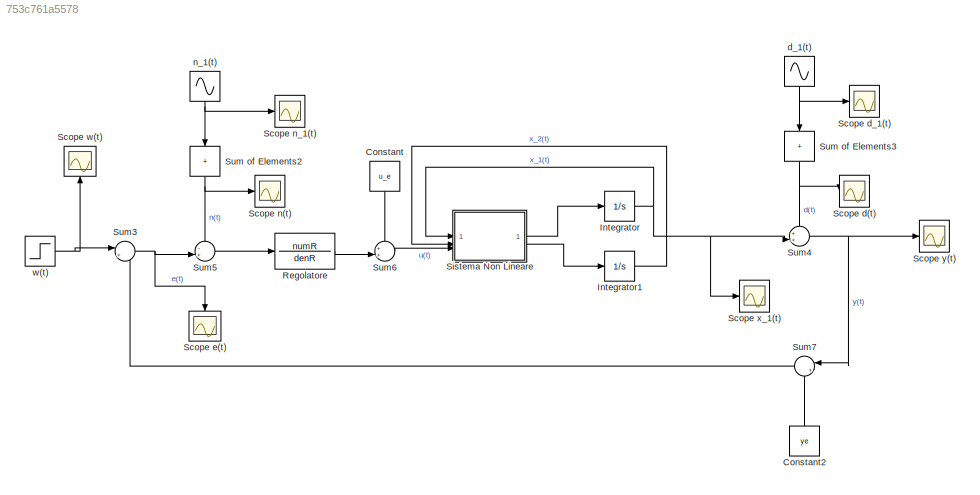
MODEL slx_753c761a5578
KIND model
CONFIG AbsTol = auto
CONFIG EnableMultiTasking = off
CONFIG FixedStep = auto
CONFIG MaxStep = auto
CONFIG MinStep = auto
CONFIG RelTol = 1e-3
CONFIG SampleTimeConstraint = Unconstrained
CONFIG SolverName = VariableStepAuto
CONFIG StartTime = 0.0
CONFIG StopTime = 100
BLOCK [Constant] Constant
  NameLocation = left
  Value = u_e
BLOCK [Constant] Constant2
  NameLocation = right
  Value = ye
BLOCK [Integrator] Integrator
  InitialCondition = x01
BLOCK [Integrator] Integrator1
  InitialCondition = x02
BLOCK [TransferFcn] Regolatore
  Denominator = denR
  Numerator = numR
BLOCK [Scope] Scope d(t)
  Floating = off
  NumInputPorts = 1
  ScopeSpecificationString = Simulink.scopes.TimeScopeBlockCfg('CurrentConfiguration', extmgr.ConfigurationSet(extmgr.Configuration('Core','General UI',true),extmgr.Configuration('Core','Source UI',true),extmgr.Configuration('Sources','WiredSimulink',true,'DataLoggingVariableName','ScopeData4'),extmgr.Configuration('Visuals','Time Domain',true,'SerializedDisplays',{struct('MinYLimReal','-0.18285','MaxYLimReal','1.09778','YLab...<+1394ch>
BLOCK [Scope] Scope d_1(t)
  Floating = off
  NumInputPorts = 1
  ScopeSpecificationString = Simulink.scopes.TimeScopeBlockCfg('CurrentConfiguration', extmgr.ConfigurationSet(extmgr.Configuration('Core','General UI',true),extmgr.Configuration('Core','Source UI',true),extmgr.Configuration('Sources','WiredSimulink',true,'DataLoggingVariableName','ScopeData2'),extmgr.Configuration('Visuals','Time Domain',true,'SerializedDisplays',{struct('MinYLimReal','-0.375','MaxYLimReal','0.375','YLabelRe...<+1384ch>
BLOCK [Scope] Scope e(t)
  Floating = off
  NameLocation = left
  NumInputPorts = 1
  ScopeSpecificationString = Simulink.scopes.TimeScopeBlockCfg('CurrentConfiguration', extmgr.ConfigurationSet(extmgr.Configuration('Core','General UI',true),extmgr.Configuration('Core','Source UI',true),extmgr.Configuration('Sources','WiredSimulink',true,'DataLoggingVariableName','ScopeData1'),extmgr.Configuration('Visuals','Time Domain',true,'SerializedDisplays',{struct('MinYLimReal','-0.2709','MaxYLimReal','2.25232','YLabe...<+1390ch>
BLOCK [Scope] Scope n(t)
  Floating = off
  NumInputPorts = 1
  ScopeSpecificationString = Simulink.scopes.TimeScopeBlockCfg('CurrentConfiguration', extmgr.ConfigurationSet(extmgr.Configuration('Core','General UI',true),extmgr.Configuration('Core','Source UI',true),extmgr.Configuration('Sources','WiredSimulink',true,'SampleTime','0.0001'),extmgr.Configuration('Visuals','Time Domain',true,'SerializedDisplays',{struct('MinYLimReal','-0.8081','MaxYLimReal','0.8081','YLabelReal','','MinYLim...<+1504ch>
BLOCK [Scope] Scope n_1(t)
  Floating = off
  NumInputPorts = 1
  ScopeSpecificationString = Simulink.scopes.TimeScopeBlockCfg('CurrentConfiguration', extmgr.ConfigurationSet(extmgr.Configuration('Core','General UI',true),extmgr.Configuration('Core','Source UI',true),extmgr.Configuration('Sources','WiredSimulink',true,'DataLoggingVariableName','ScopeData3','SampleTime','0.0001'),extmgr.Configuration('Visuals','Time Domain',true,'SerializedDisplays',{struct('MinYLimReal','-0.24998','MaxYLi...<+1504ch>
BLOCK [Scope] Scope w(t)
  Floating = off
  NameLocation = right
  NumInputPorts = 1
  ScopeSpecificationString = Simulink.scopes.TimeScopeBlockCfg('CurrentConfiguration', extmgr.ConfigurationSet(extmgr.Configuration('Core','General UI',true),extmgr.Configuration('Core','Source UI',true),extmgr.Configuration('Sources','WiredSimulink',true,'DataLoggingVariableName','ScopeData2'),extmgr.Configuration('Visuals','Time Domain',true,'SerializedDisplays',{struct('MinYLimReal','1.00000','MaxYLimReal','3.00000','YLabe...<+1387ch>
BLOCK [Scope] Scope x_1(t)
  Floating = off
  NumInputPorts = 1
  ScopeSpecificationString = Simulink.scopes.TimeScopeBlockCfg('CurrentConfiguration', extmgr.ConfigurationSet(extmgr.Configuration('Core','General UI',true),extmgr.Configuration('Core','Source UI',true),extmgr.Configuration('Sources','WiredSimulink',true,'DataLoggingVariableName','ScopeData1'),extmgr.Configuration('Visuals','Time Domain',true,'SerializedDisplays',{struct('MinYLimReal','0.78984','MaxYLimReal','3.36339','YLabe...<+1361ch>
BLOCK [Scope] Scope y(t)
  Floating = off
  NumInputPorts = 1
  ScopeSpecificationString = Simulink.scopes.TimeScopeBlockCfg('CurrentConfiguration', extmgr.ConfigurationSet(extmgr.Configuration('Core','General UI',true),extmgr.Configuration('Core','Source UI',true),extmgr.Configuration('Sources','WiredSimulink',true,'DataLoggingVariableName','ScopeData6'),extmgr.Configuration('Visuals','Time Domain',true,'SerializedDisplays',{struct('MinYLimReal','2.10044','MaxYLimReal','3.21409','YLabe...<+1454ch>
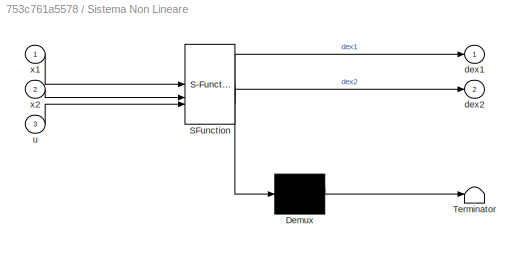
BLOCK [SubSystem] Sistema Non Lineare
  ErrorFcn = Stateflow.Translate.translate
  LibrarySourceBlock = simulink/User-Defined\nFunctions/MATLAB Function
  PermitHierarchicalResolution = ExplicitOnly
  SFBlockType = MATLAB Function
  TreatAsAtomicUnit = on
BLOCK [Demux] Sistema Non Lineare/ Demux 
  Outputs = 1
BLOCK [S-Function] Sistema Non Lineare/ SFunction 
  EnableBusSupport = on
  FunctionName = sf_sfun
  PortCounts = [3 3]
  SFcnIsStateOwnerBlock = off
  SFunctionDeploymentMode = off
  Tag = Stateflow S-Function 2
BLOCK [Terminator] Sistema Non Lineare/ Terminator 
BLOCK [Outport] Sistema Non Lineare/dex1
BLOCK [Outport] Sistema Non Lineare/dex2
  Port = 2
BLOCK [Inport] Sistema Non Lineare/u
  Port = 3
BLOCK [Inport] Sistema Non Lineare/x1
BLOCK [Inport] Sistema Non Lineare/x2
  Port = 2
BLOCK [Sum] Sum of Elements2
  CollapseDim = 4
  IconShape = rectangular
  Inputs = +
  NameLocation = left
BLOCK [Sum] Sum of Elements3
  CollapseDim = 4
  IconShape = rectangular
  Inputs = +
  NameLocation = left
BLOCK [Sum] Sum3
  Inputs = |+-
BLOCK [Sum] Sum4
  Inputs = ++|
BLOCK [Sum] Sum5
  Inputs = -+|
BLOCK [Sum] Sum6
  Inputs = ++|
BLOCK [Sum] Sum7
  Inputs = |+-
  NameLocation = top
BLOCK [Sin] d_1(t)
  Amplitude = DD_ampiezza
  Frequency = DD_frequenza*x
  NameLocation = left
  SampleTime = 0
BLOCK [Sin] n_1(t)
  Amplitude = NN_ampiezza
  Frequency = NN_frequenza*x
  NameLocation = left
  SampleTime = 0
BLOCK [Step] w(t)
  After = WW
  SampleTime = 0
  Time = 0
LINE Constant2:1 -> Sum7:2
LINE Constant:1 -> Sum6:1
LINE Integrator1:1 -> Sistema Non Lineare:2
NET Integrator:1 -> Scope x_1(t):1, Sistema Non Lineare:1, Sum4:2
LINE Regolatore:1 -> Sum6:2
LINE Sistema Non Lineare:1 -> Integrator:1
LINE Sistema Non Lineare:2 -> Integrator1:1
NET Sum of Elements2:1 -> Scope n(t):1, Sum5:1
NET Sum of Elements3:1 -> Scope d(t):1, Sum4:1
NET Sum3:1 -> Scope e(t):1, Sum5:2
NET Sum4:1 -> Scope y(t):1, Sum7:1
LINE Sum5:1 -> Regolatore:1
LINE Sum6:1 -> Sistema Non Lineare:3
LINE Sum7:1 -> Sum3:2
NET d_1(t):1 -> Scope d_1(t):1, Sum of Elements3:1
NET n_1(t):1 -> Scope n_1(t):1, Sum of Elements2:1
NET w(t):1 -> Scope w(t):1, Sum3:1
note: NET lines group one-source signal fan-out (src -> all destinations, sorted); 1:1 wires keep LINE
CHART Sistema Non Lineare states=1 transitions=1
  STATE_LABEL 'eML_blk_kernel()'
  STATE_LABEL 'SCRIPT:\nfunction [dex1,dex2] = fcn(x1,x2,u)\n% Parametri\nbeta = 0.5;\nJ = 10;\na = 0.01;\nF_v = -5;\n\n%Sistema\ndex1 = x2;\ndex2 = (-beta/J)*x2+(a/(2*J))*sin(x1)*F_v+(a/J)*u;\n'
CHART  states=0 transitions=0
